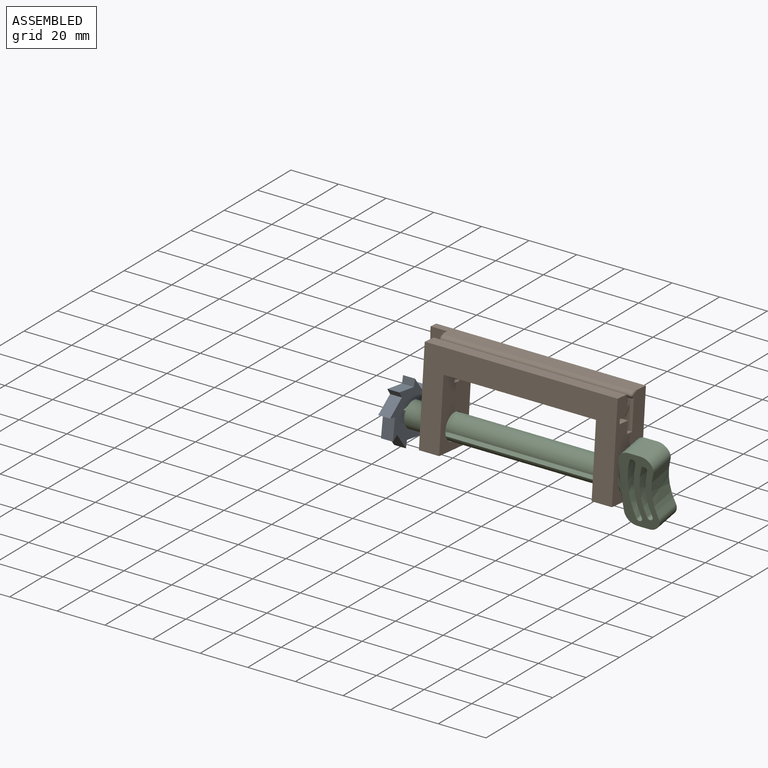
[diagram: assembled view]
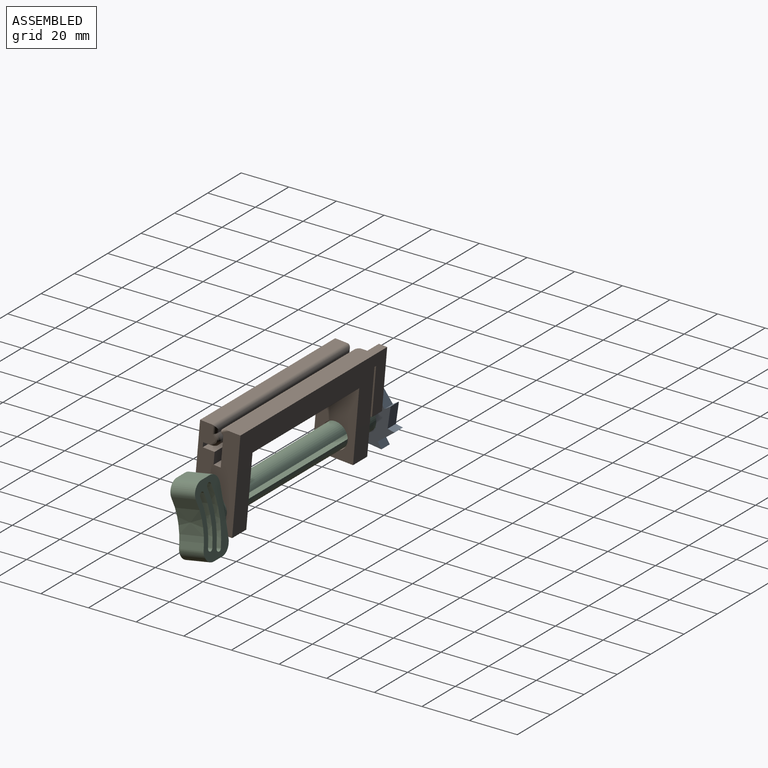
[diagram: assembled view, second angle]
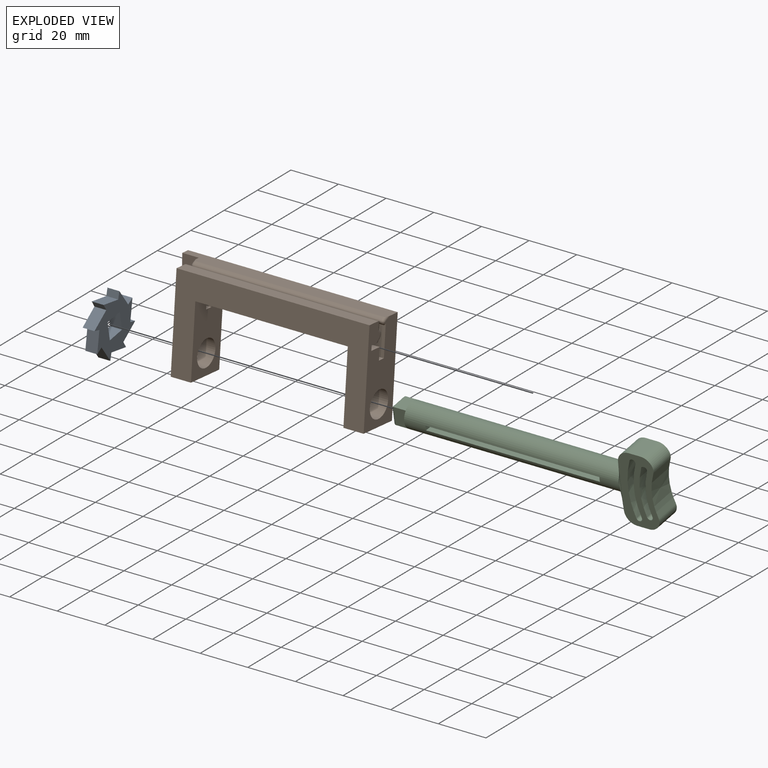
[diagram: exploded view]
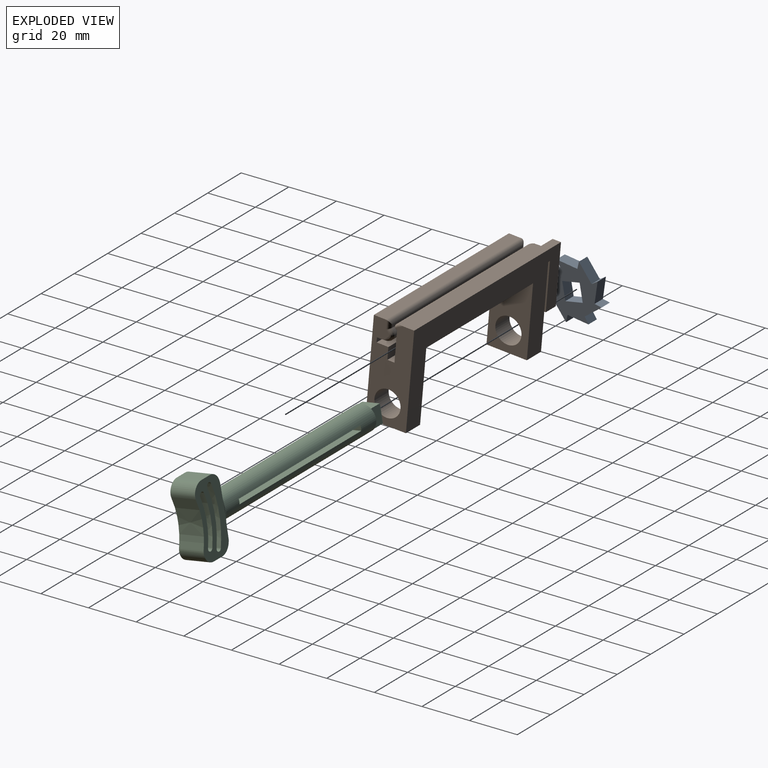
[diagram: exploded view, second angle]
ASSEMBLY  parts=3 mates=2
PART A: 22 faces, bbox 23.1x23.1x5 mm
  f0: plane 23.1x23.1mm, normal (0,0,1), area 280.8mm2, adj f2,f3,f4,f5,f6,f7,f8,f9
  f1: plane 23.1x23.1mm, normal (0,0,-1), area 280.8mm2, adj f2,f3,f4,f5,f6,f7,f8,f9
  f2: plane 5x2.77mm, normal (-0.92,0.38,0), area 15mm2, adj f0,f1,f3,f5
  f3: plane 8.42x5mm, normal (0.31,0.95,0), area 44.3mm2, adj f0,f1,f2,f16
  f4: plane 5x2.77mm, normal (-0.38,0.92,0), area 15mm2, adj f0,f1,f5,f7
  f5: plane 7.91x5mm, normal (0.89,0.45,0), area 44.3mm2, adj f0,f1,f2,f4
  f6: plane 5x2.77mm, normal (0.38,0.92,0), area 15mm2, adj f0,f1,f7,f9
  f7: plane 8.42x5mm, normal (0.95,-0.31,0), area 44.3mm2, adj f0,f1,f4,f6
  f8: plane 5x2.77mm, normal (0.92,0.38,0), area 15mm2, adj f0,f1,f9,f11
  f9: plane 7.91x5mm, normal (0.45,-0.89,0), area 44.3mm2, adj f0,f1,f6,f8
  f10: plane 5x2.77mm, normal (0.92,-0.38,0), area 15mm2, adj f0,f1,f11,f13
  f11: plane 8.42x5mm, normal (-0.31,-0.95,0), area 44.3mm2, adj f0,f1,f8,f10
  f12: plane 5x2.77mm, normal (0.38,-0.92,0), area 15mm2, adj f0,f1,f13,f15
  f13: plane 7.91x5mm, normal (-0.89,-0.45,0), area 44.3mm2, adj f0,f1,f10,f12
  f14: plane 5x2.77mm, normal (-0.38,-0.92,0), area 15mm2, adj f0,f1,f15,f17
  f15: plane 8.42x5mm, normal (-0.95,0.31,0), area 44.3mm2, adj f0,f1,f12,f14
  f16: plane 5x2.77mm, normal (-0.92,-0.38,0), area 15mm2, adj f0,f1,f3,f17
  f17: plane 7.91x5mm, normal (-0.45,0.89,0), area 44.3mm2, adj f0,f1,f14,f16
  f18: plane 7.42x5mm, normal (0,-1,0), area 37.1mm2, adj f0,f1,f19,f21
  f19: plane 7.42x5mm, normal (-1,0,0), area 37.1mm2, adj f0,f1,f18,f20
  f20: plane 7.42x5mm, normal (0,1,0), area 37.1mm2, adj f0,f1,f19,f21
  f21: plane 7.42x5mm, normal (1,0,0), area 37.1mm2, adj f0,f1,f18,f20
PART B: 42 faces, bbox 88.6x41.8x17.6 mm
  f0: plane 17x8.5mm, normal (0,-1,0), area 144.5mm2, adj f2,f3,f20,f24
  f1: plane 8.5x5mm, normal (0,1,0), area 42.5mm2, adj f12,f14,f21,f25
  f2: plane 81x40mm, normal (0,0,1), area 1320mm2, adj f0,f8,f18,f20,f21,f22,f24,f25
  f3: plane 88x40mm, normal (0,0,-1), area 1475mm2, adj f0,f8,f9,f20,f21,f23,f24,f25
  f4: plane 81.26x13.4mm, normal (0,0,1), area 652.5mm2, adj f5,f10,f11,f20,f21,f23,f24,f25
  f5: plane 8.5x3mm, normal (0,1,0), area 25.5mm2, adj f4,f6,f20,f24
  f6: plane 8.5x5mm, normal (0,0,-1), area 42.5mm2, adj f5,f13,f20,f24
  f7: cylinder r=5.5mm len=11mm, axis (-1,0,0), area 293.7mm2, adj f20,f24
  f8: plane 17x8.5mm, normal (0,-1,0), area 144.5mm2, adj f2,f3,f21,f25
  f9: plane 88.54x7.54mm, normal (0,1,0), area 590.5mm2, adj f3,f10,f20,f21,f26,f28,f38,f41
  f10: extruded ~79x3mm, area 350.5mm2, adj f4,f9,f36,f37,f38,f39,f40,f41
  f11: plane 8.5x3mm, normal (0,1,0), area 25.5mm2, adj f4,f12,f21,f25
  f12: plane 8.5x5mm, normal (0,0,-1), area 42.5mm2, adj f1,f11,f21,f25
  f13: plane 8.5x5mm, normal (0,1,0), area 42.5mm2, adj f6,f14,f20,f24
  f14: plane 81x2mm, normal (0,0,-1), area 162mm2, adj f1,f13,f15,f20,f21,f22
  f15: plane 81.63x5.63mm, normal (0,-1,0), area 403.5mm2, adj f14,f16,f20,f21,f32,f34
  f16: extruded ~78x5mm, area 469.7mm2, adj f15,f17,f32,f34
  f17: plane 78x1mm, normal (0,0,-1), area 78mm2, adj f16,f31,f33,f35
  f18: plane 81x5mm, normal (0,1,0), area 405mm2, adj f2,f20,f21,f31
  f19: cylinder r=5.5mm len=11mm, axis (-1,0,0), area 293.7mm2, adj f21,f25
  f20: plane 40x17mm, normal (1,0,0), area 519.9mm2, adj f0,f2,f3,f4,f5,f6,f7,f9
  f21: plane 40x17mm, normal (-1,0,0), area 503.2mm2, adj f1,f2,f3,f4,f8,f9,f11,f12
  f22: plane 64x2mm, normal (0,-1,0), area 128mm2, adj f2,f14,f24,f25
  f23: plane 64x7mm, normal (0,-1,0), area 448mm2, adj f3,f4,f24,f25
  f24: plane 30x17mm, normal (-1,0,0), area 400mm2, adj f0,f2,f3,f4,f5,f6,f7,f13
  f25: plane 30x17mm, normal (1,0,0), area 400mm2, adj f1,f2,f3,f4,f8,f11,f12,f19
  f26: plane 25x7mm, normal (0,-0.06,1), area 155.3mm2, adj f9,f21,f27,f28,f29,f30
  f27: plane 6x2mm, normal (0,-1,0), area 12mm2, adj f3,f26,f28,f29
  f28: plane 25x3.5mm, normal (-1,0,0), area 68.8mm2, adj f3,f9,f26,f27
  f29: plane 20x3.2mm, normal (1,0,0), area 52mm2, adj f3,f26,f27,f30
  f30: plane 3.2x1mm, normal (0,-1,0), area 3.2mm2, adj f3,f21,f26,f29
  f31: cylinder r=2mm len=81mm, axis (-1,0,0), area 251.5mm2, adj f17,f18,f20,f21,f33,f35
  f32: bspline ~8.08x5.19mm, area 14.9mm2, adj f15,f16,f20,f33
  f33: cylinder r=1.5mm len=3.64mm, axis (0,-1,0), area 5.5mm2, adj f17,f20,f31,f32
  f34: bspline ~7.44x4.31mm, area 14.9mm2, adj f15,f16,f21,f35
  f35: cylinder r=1.5mm len=3.64mm, axis (0,1,0), area 5.5mm2, adj f17,f21,f31,f34
  f36: bspline ~1.97x1.67mm, area 1.7mm2, adj f4,f10,f21,f37
  f37: bspline ~1.28x1.06mm, area 0.9mm2, adj f10,f36,f38
  f38: bspline ~4.18x2.75mm, area 3.7mm2, adj f9,f10,f21,f37
  f39: bspline ~2.02x1.7mm, area 1.7mm2, adj f4,f10,f20,f40
  f40: bspline ~1.28x1.06mm, area 0.9mm2, adj f10,f39,f41
  f41: bspline ~4.22x2.77mm, area 3.7mm2, adj f9,f10,f20,f40
PART C: 41 faces, bbox 112x30x10.5 mm
  f0: cylinder r=5.25mm len=90mm, axis (-1,0,0), area 2675mm2, adj f1,f2,f3,f4,f24,f25,f26,f27
  f1: plane 7.42x1.54mm, normal (-1,0,0), area 7.9mm2, adj f0,f28
  f2: plane 7.42x1.54mm, normal (-1,0,0), area 7.9mm2, adj f0,f30
  f3: plane 7.42x1.54mm, normal (-1,0,0), area 7.9mm2, adj f0,f29
  f4: plane 7.42x1.54mm, normal (-1,0,0), area 7.9mm2, adj f0,f31
  f5: cylinder r=1.25mm len=10.5mm, axis (0,0,-1), area 41.2mm2, adj f6,f15,f16,f17
  f6: extruded ~20.24x10.5mm, area 216.5mm2, adj f5,f7,f16,f17
  f7: cylinder r=1.25mm len=10.5mm, axis (0,0,-1), area 41.2mm2, adj f6,f15,f16,f17
  f8: cylinder r=1.25mm len=10.5mm, axis (0,0,-1), area 41.2mm2, adj f9,f13,f16,f17
  f9: extruded ~23.77x10.5mm, area 254.4mm2, adj f8,f10,f16,f17
  f10: cylinder r=1.25mm len=10.5mm, axis (0,0,-1), area 41.2mm2, adj f9,f13,f16,f17
  f11: extruded ~18.17x10.5mm, area 194.9mm2, adj f16,f17,f22,f23
  f12: plane 10.5x5mm, normal (0,1,0), area 52.5mm2, adj f16,f17,f18,f19
  f13: extruded ~22.14x10.5mm, area 237mm2, adj f8,f10,f16,f17
  f14: plane 10.5x5mm, normal (0,-1,0), area 52.5mm2, adj f16,f17,f20,f21
  f15: extruded ~18.63x10.5mm, area 199.3mm2, adj f5,f7,f16,f17
  f16: plane 30x15mm, normal (0,0,1), area 283.8mm2, adj f5,f6,f7,f8,f9,f10,f11,f12
  f17: plane 30x15mm, normal (0,0,-1), area 283.8mm2, adj f5,f6,f7,f8,f9,f10,f11,f12
  f18: cylinder r=5mm len=10.5mm, axis (0,0,-1), area 57.8mm2, adj f12,f16,f17,f23
  f19: cylinder r=5mm len=10.5mm, axis (0,0,1), area 82.5mm2, adj f12,f16,f17,f25
  f20: cylinder r=5mm len=10.5mm, axis (0,0,-1), area 82.5mm2, adj f14,f16,f17,f27
  f21: cylinder r=5mm len=10.5mm, axis (0,0,1), area 57.8mm2, adj f14,f16,f17,f22
  f22: cylinder r=4mm len=10.5mm, axis (0,0,-1), area 34.4mm2, adj f11,f16,f17,f21
  f23: cylinder r=4mm len=10.5mm, axis (0,0,-1), area 34.4mm2, adj f11,f16,f17,f18
  f24: bspline ~20x1.54mm, area 21.2mm2, adj f0,f17,f25,f27
  f25: bspline ~10.5x6.29mm, area 49.4mm2, adj f0,f19,f24,f26
  f26: bspline ~20x1.54mm, area 21.2mm2, adj f0,f16,f25,f27
  f27: bspline ~10.5x6.29mm, area 49.4mm2, adj f0,f20,f24,f26
  f28: plane 7.42x5mm, normal (0,-1,0), area 37.1mm2, adj f1,f29,f31,f37
  f29: plane 7.42x5mm, normal (0,0,1), area 37.1mm2, adj f3,f28,f30,f38
  f30: plane 7.42x5mm, normal (0,1,0), area 37.1mm2, adj f2,f29,f31,f40
  f31: plane 7.42x5mm, normal (0,0,-1), area 37.1mm2, adj f4,f28,f30,f39
  f32: plane 5.42x5.42mm, normal (-1,0,0), area 29.4mm2, adj f37,f38,f39,f40
  f33: plane 10.5x2mm, normal (-1,0,0), area 20.9mm2, adj f0,f34,f36
  f34: plane 73x10.31mm, normal (0,1,0), area 752.5mm2, adj f0,f33,f35
  f35: plane 10.5x2mm, normal (1,0,0), area 20.9mm2, adj f0,f34,f36
  f36: plane 73x10.31mm, normal (0,-1,0), area 752.5mm2, adj f0,f33,f35
  f37: cylinder r=1mm len=7.42mm, axis (0,0,-1), area 10.1mm2, adj f28,f32,f38,f39
  f38: cylinder r=1mm len=7.42mm, axis (0,-1,0), area 10.1mm2, adj f29,f32,f37,f40
  f39: cylinder r=1mm len=7.42mm, axis (0,1,0), area 10.1mm2, adj f31,f32,f37,f40
  f40: cylinder r=1mm len=7.42mm, axis (0,0,1), area 10.1mm2, adj f30,f32,f38,f39
PLACE A rot(axis=(-0.71,0.06,-0.71),172.9deg) t=(-116.09,10.49,12.91)mm
PLACE B rot(axis=(1,0,0),85deg) t=(-101.09,11.5,24.37)mm
PLACE C rot(axis=(1,0,0),100deg) t=(-19.09,15.66,13.82)mm
MATE fastened C.f0 <-> A.f1  axis (-1,0,0) through (-116.09,10.49,12.91)mm
MATE revolute B.f7 <-> C.f0  axis (-1,0,0) through (-20.09,10.49,12.91)mm
